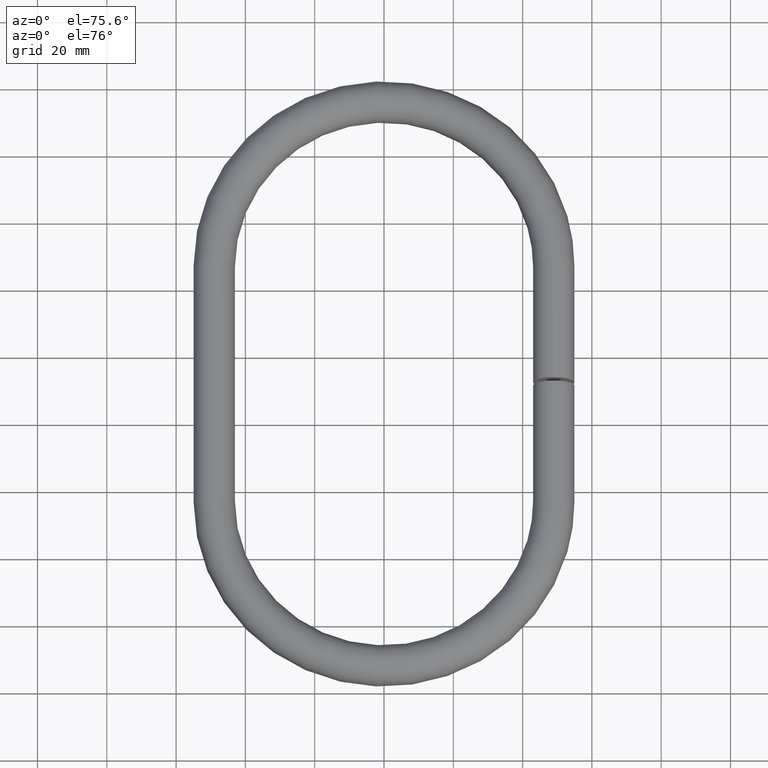
[diagram: clean part render]
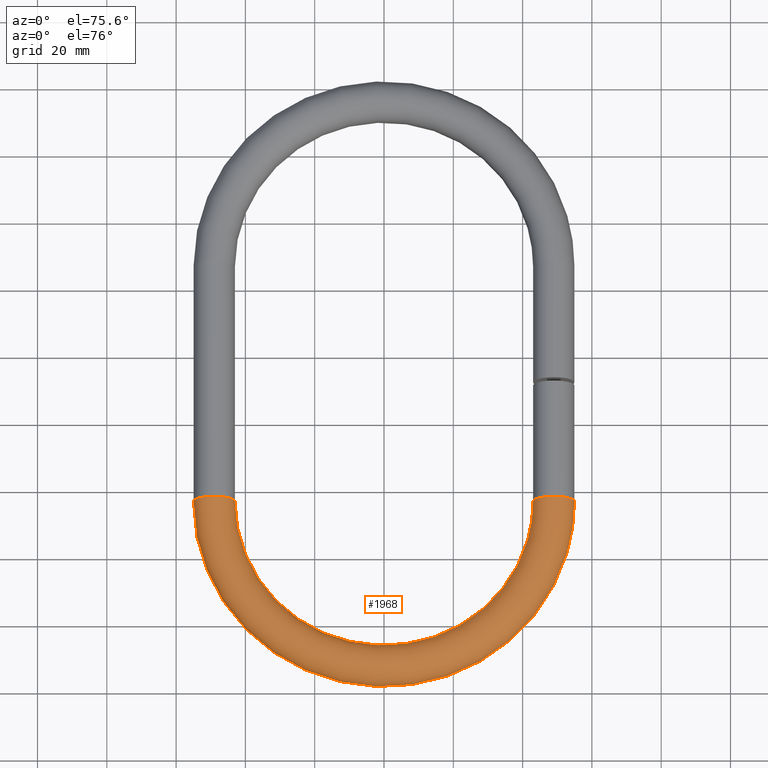
[diagram: same view with one face highlighted and labeled with its STEP entity id]
A machine part, auxiliary view. The second image highlights one B-rep face of the part: STEP entity #1968.
In plain terms, the highlighted toroidal blend (fillet) surface has major radius 49 mm and minor (blend) radius 6 mm.
Its self-contained STEP definition (entity closure, byte-faithful):
#760 = FACE_OUTER_BOUND ( 'NONE', #4126, .T. ) ;
#969 = CARTESIAN_POINT ( 'NONE',  ( -49.00000000000000000, 54.99999999999999300, -6.000000000000000900 ) ) ;
#1185 = DIRECTION ( 'NONE',  ( -1.836970198721029700E-016, 1.000000000000000000, 0.0000000000000000000 ) ) ;
#1363 = EDGE_LOOP ( 'NONE', ( #1684 ) ) ;
#1684 = ORIENTED_EDGE ( 'NONE', *, *, #8933, .F. ) ;
#1708 = ORIENTED_EDGE ( 'NONE', *, *, #2548, .T. ) ;
#1968 = ADVANCED_FACE ( 'NONE', ( #760, #5884 ), #8625, .T. ) ;
#2074 = AXIS2_PLACEMENT_3D ( 'NONE', #2929, #9699, #9763 ) ;
#2407 = CARTESIAN_POINT ( 'NONE',  ( 49.00000000000000700, 54.99999999999999300, -6.000000000000000900 ) ) ;
#2548 = EDGE_CURVE ( 'NONE', #6204, #6204, #8159, .T. ) ;
#2929 = CARTESIAN_POINT ( 'NONE',  ( -49.00000000000000000, 54.99999999999999300, 0.0000000000000000000 ) ) ;
#3346 = CARTESIAN_POINT ( 'NONE',  ( 0.0000000000000000000, 55.00000000000000000, 0.0000000000000000000 ) ) ;
#3425 = CARTESIAN_POINT ( 'NONE',  ( 49.00000000000000700, 54.99999999999999300, 0.0000000000000000000 ) ) ;
#4126 = EDGE_LOOP ( 'NONE', ( #1708 ) ) ;
#5884 = FACE_OUTER_BOUND ( 'NONE', #1363, .T. ) ;
#6066 = AXIS2_PLACEMENT_3D ( 'NONE', #3425, #1185, #6506 ) ;
#6204 = VERTEX_POINT ( 'NONE', #969 ) ;
#6506 = DIRECTION ( 'NONE',  ( 0.0000000000000000000, 0.0000000000000000000, -1.000000000000000000 ) ) ;
#6794 = VERTEX_POINT ( 'NONE', #2407 ) ;
#7920 = CIRCLE ( 'NONE', #6066, 6.000000000000000900 ) ;
#7995 = DIRECTION ( 'NONE',  ( 1.000000000000000000, 0.0000000000000000000, 0.0000000000000000000 ) ) ;
#8159 = CIRCLE ( 'NONE', #2074, 6.000000000000000900 ) ;
#8549 = AXIS2_PLACEMENT_3D ( 'NONE', #3346, #9463, #7995 ) ;
#8625 = TOROIDAL_SURFACE ( 'NONE', #8549, 49.00000000000000000, 6.000000000000000900 ) ;
#8933 = EDGE_CURVE ( 'NONE', #6794, #6794, #7920, .T. ) ;
#9463 = DIRECTION ( 'NONE',  ( 0.0000000000000000000, 0.0000000000000000000, 1.000000000000000000 ) ) ;
#9699 = DIRECTION ( 'NONE',  ( 6.123233995736766000E-017, -1.000000000000000000, 0.0000000000000000000 ) ) ;
#9763 = DIRECTION ( 'NONE',  ( 0.0000000000000000000, 0.0000000000000000000, -1.000000000000000000 ) ) ;